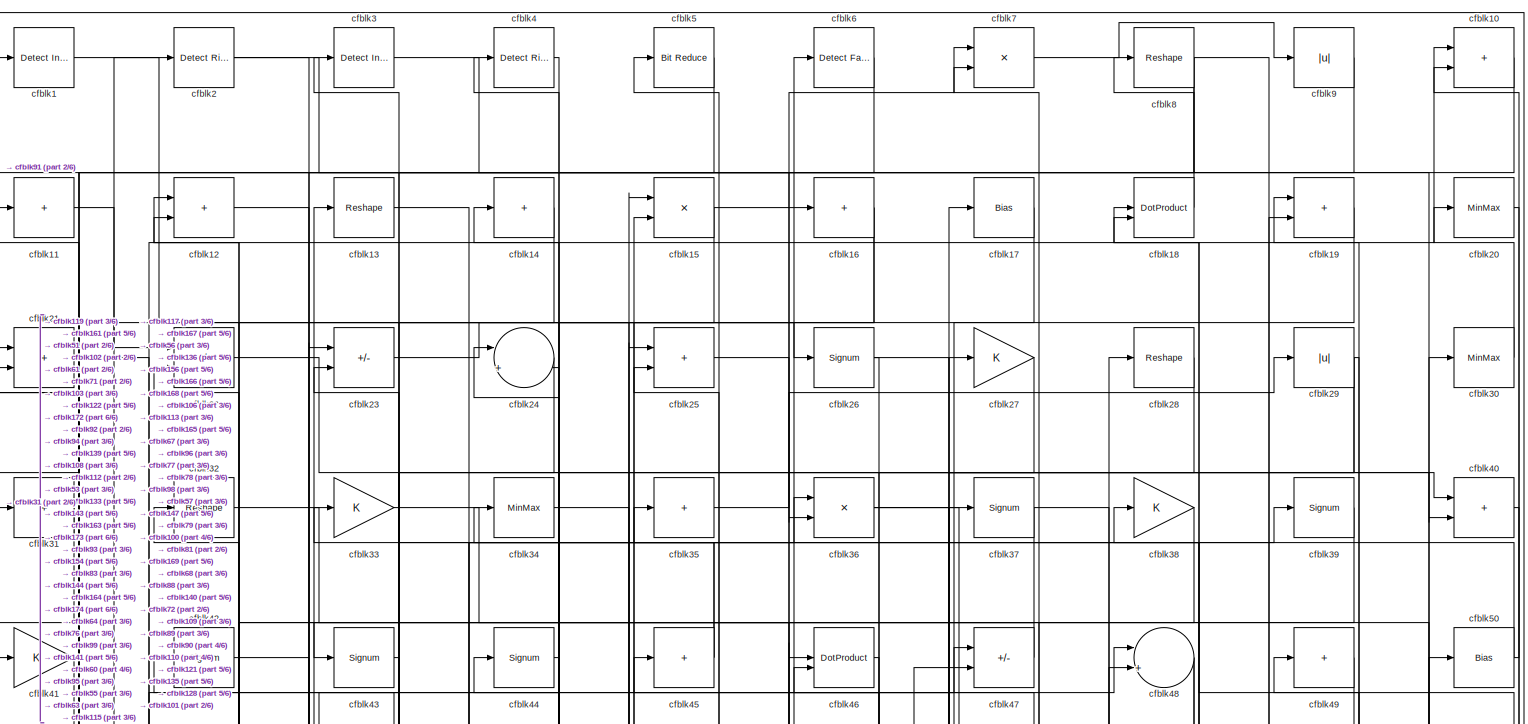
[diagram: root canvas - part 1/6, full width, top band]
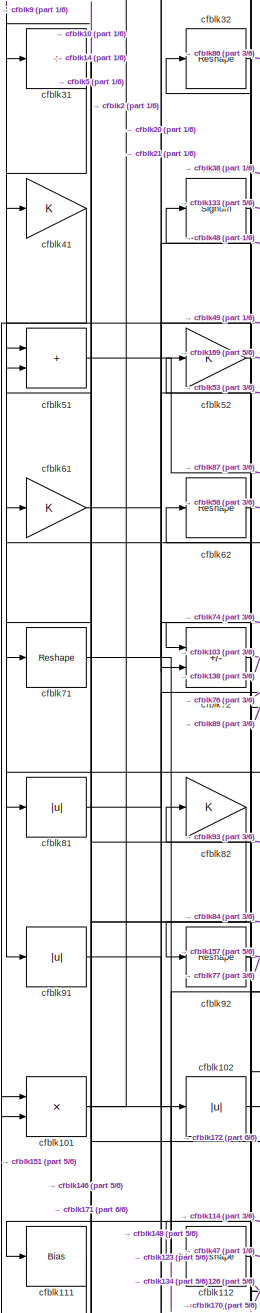
[diagram: root canvas - part 2/6, middle left region]
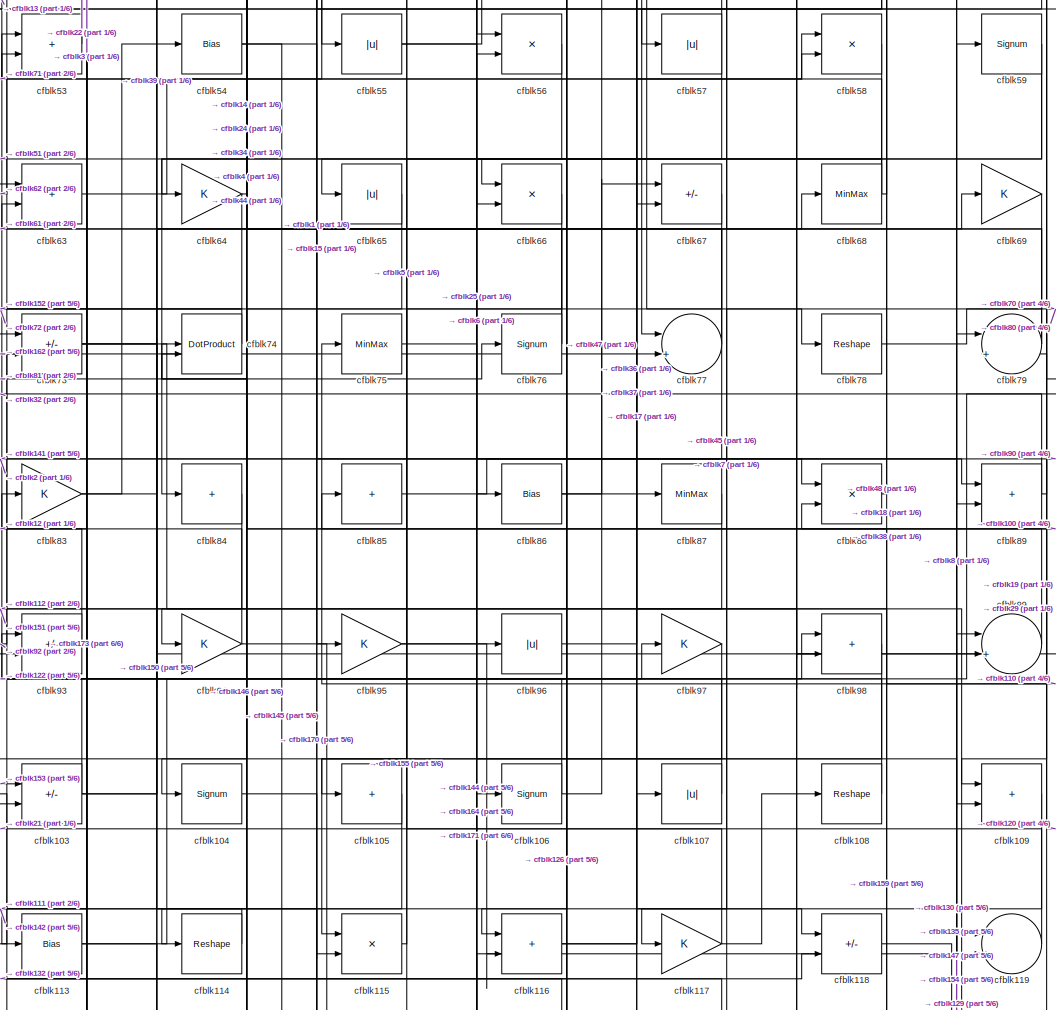
[diagram: root canvas - part 3/6, central region]
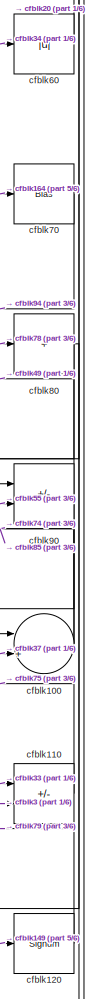
[diagram: root canvas - part 4/6, middle right region]
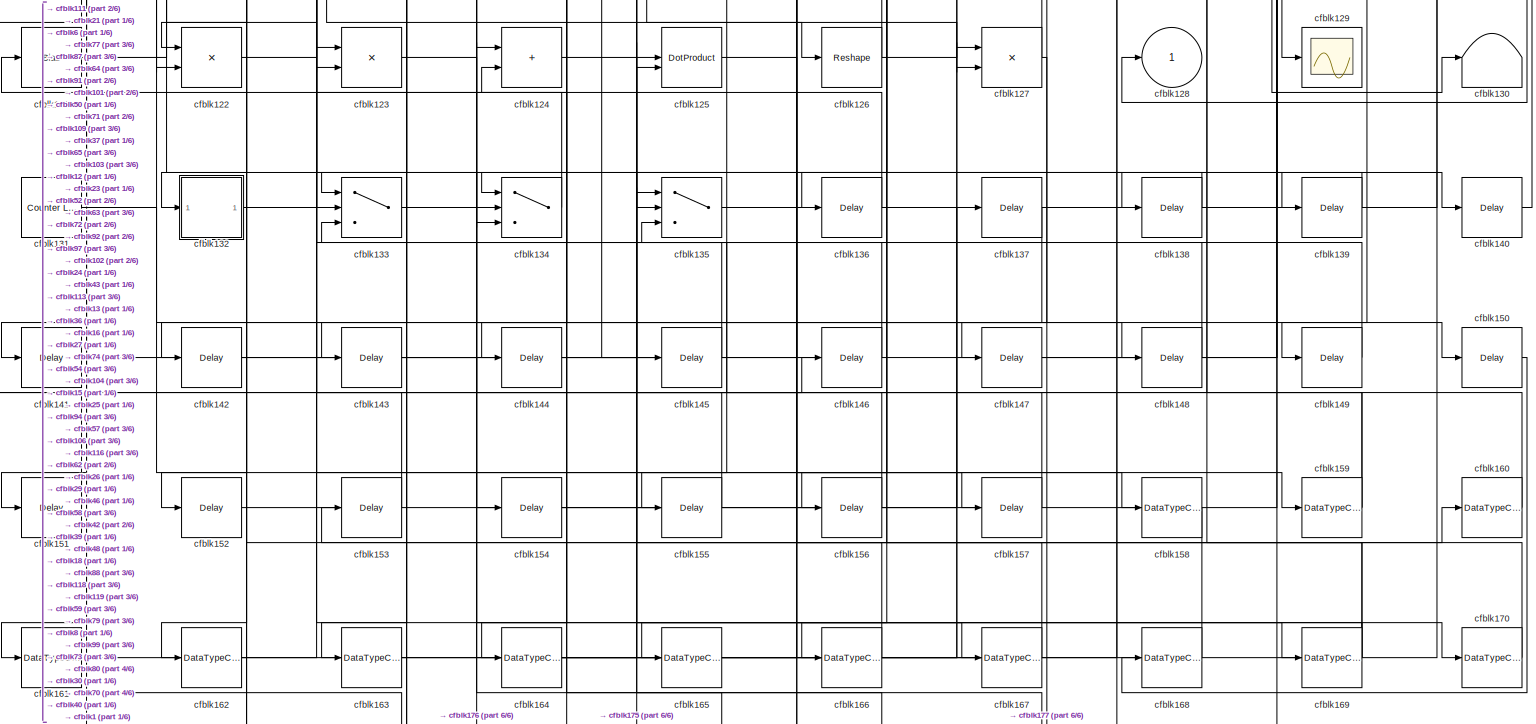
[diagram: root canvas - part 5/6, full width, bottom band]
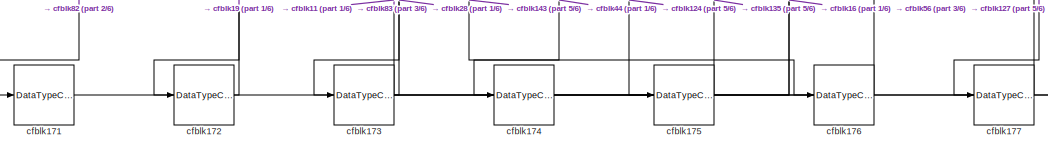
[diagram: root canvas - part 6/6, bottom center region]
MODEL slx_70a9b94ecc16
KIND model
CONFIG AbsTol = auto
CONFIG EnableMultiTasking = off
CONFIG FixedStep = auto
CONFIG MaxStep = auto
CONFIG MinStep = auto
CONFIG RelTol = 1e-3
CONFIG SampleTimeConstraint = Unconstrained
CONFIG SolverName = VariableStepAuto
CONFIG StartTime = 0.0
CONFIG StopTime = 10.0
BLOCK [Reference] cfblk1  REF=simulink/Logic and Bit
Operations/Detect
Increase
  LibrarySourceBlock = hdlsllib/Logic and Bit\nOperations/Detect\nIncrease
  SourceBlock = simulink/Logic and Bit\nOperations/Detect\nIncrease
  SourceType = Detect Increase
BLOCK [Sum] cfblk10
  IconShape = rectangular
BLOCK [Sum] cfblk100
  Inputs = |++
BLOCK [Product] cfblk101
  Inputs = */
  RndMeth = Zero
  SaturateOnIntegerOverflow = on
BLOCK [Abs] cfblk102
  SaturateOnIntegerOverflow = off
BLOCK [Sum] cfblk103
  IconShape = rectangular
  Inputs = +-
BLOCK [Signum] cfblk104
BLOCK [Sum] cfblk105
  IconShape = rectangular
  Inputs = +
BLOCK [Signum] cfblk106
BLOCK [Abs] cfblk107
  SaturateOnIntegerOverflow = off
BLOCK [Reshape] cfblk108
BLOCK [Sum] cfblk109
  IconShape = rectangular
BLOCK [Sum] cfblk11
  IconShape = rectangular
  Inputs = +
BLOCK [Sum] cfblk110
  IconShape = rectangular
  Inputs = +-
BLOCK [Bias] cfblk111
  Bias = 0.0
  SaturateOnIntegerOverflow = off
BLOCK [Reshape] cfblk112
BLOCK [Bias] cfblk113
  Bias = 0.0
  SaturateOnIntegerOverflow = off
BLOCK [Reshape] cfblk114
BLOCK [Product] cfblk115
  Inputs = */
  RndMeth = Zero
  SaturateOnIntegerOverflow = on
BLOCK [Sum] cfblk116
  IconShape = rectangular
BLOCK [Gain] cfblk117
BLOCK [Sum] cfblk118
  IconShape = rectangular
  Inputs = +-
BLOCK [Sum] cfblk119
  Inputs = |++
BLOCK [Sum] cfblk12
  IconShape = rectangular
BLOCK [Signum] cfblk120
BLOCK [Bias] cfblk121
  Bias = 0.0
  SaturateOnIntegerOverflow = off
BLOCK [Product] cfblk122
  Inputs = */
  RndMeth = Zero
  SaturateOnIntegerOverflow = on
BLOCK [Product] cfblk123
  Inputs = */
  RndMeth = Zero
  SaturateOnIntegerOverflow = on
BLOCK [Sum] cfblk124
  IconShape = rectangular
BLOCK [DotProduct] cfblk125
  OutDataTypeStr = Inherit: Inherit via internal rule
BLOCK [Reshape] cfblk126
BLOCK [Product] cfblk127
  Inputs = */
  RndMeth = Zero
  SaturateOnIntegerOverflow = on
BLOCK [Outport] cfblk128
  VectorParamsAs1DForOutWhenUnconnected = off
BLOCK [Scope] cfblk129
  Floating = off
  NumInputPorts = 1
  ScopeSpecificationString = Simulink.scopes.TimeScopeBlockCfg('CurrentConfiguration', extmgr.ConfigurationSet(extmgr.Configuration('Core','General UI',true),extmgr.Configuration('Core','Source UI',true),extmgr.Configuration('Sources','WiredSimulink',true,'DataLoggingVariableName','ScopeData2','DataLoggingSaveFormat','Array','DataLoggingLimitDataPoints',true,'DataLoggingDecimation','1'),extmgr.Configuration('Visuals','Time Do...<+868ch>
BLOCK [Reshape] cfblk13
BLOCK [Terminator] cfblk130
BLOCK [Reference] cfblk131  REF=hdlsllib/Sources/Counter
Limited
  SourceBlock = hdlsllib/Sources/Counter\nLimited
  SourceType = Counter Limited
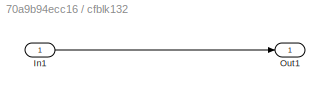
BLOCK [SubSystem] cfblk132
  LibrarySourceBlock = hdlsllib/Ports &\nSubsystems/Subsystem
BLOCK [Inport] cfblk132/In1
BLOCK [Outport] cfblk132/Out1
BLOCK [Switch] cfblk133
  InputSameDT = off
  SaturateOnIntegerOverflow = off
BLOCK [Switch] cfblk134
  InputSameDT = off
  SaturateOnIntegerOverflow = off
BLOCK [Switch] cfblk135
  InputSameDT = off
  SaturateOnIntegerOverflow = off
BLOCK [Delay] cfblk136
  InputPortMap = u0
  SampleTime = 1
BLOCK [Delay] cfblk137
  InputPortMap = u0
  SampleTime = 1
BLOCK [Delay] cfblk138
  InputPortMap = u0
  SampleTime = 1
BLOCK [Delay] cfblk139
  InputPortMap = u0
  SampleTime = 1
BLOCK [Sum] cfblk14
  IconShape = rectangular
  Inputs = +
BLOCK [Delay] cfblk140
  InputPortMap = u0
  SampleTime = 1
BLOCK [Delay] cfblk141
  InputPortMap = u0
  SampleTime = 1
BLOCK [Delay] cfblk142
  InputPortMap = u0
  SampleTime = 1
BLOCK [Delay] cfblk143
  InputPortMap = u0
  SampleTime = 1
BLOCK [Delay] cfblk144
  InputPortMap = u0
  SampleTime = 1
BLOCK [Delay] cfblk145
  InputPortMap = u0
  SampleTime = 1
BLOCK [Delay] cfblk146
  InputPortMap = u0
  SampleTime = 1
BLOCK [Delay] cfblk147
  InputPortMap = u0
  SampleTime = 1
BLOCK [Delay] cfblk148
  InputPortMap = u0
  SampleTime = 1
BLOCK [Delay] cfblk149
  InputPortMap = u0
  SampleTime = 1
BLOCK [Product] cfblk15
  Inputs = */
  RndMeth = Zero
  SaturateOnIntegerOverflow = on
BLOCK [Delay] cfblk150
  InputPortMap = u0
  SampleTime = 1
BLOCK [Delay] cfblk151
  InputPortMap = u0
  SampleTime = 1
BLOCK [Delay] cfblk152
  InputPortMap = u0
  SampleTime = 1
BLOCK [Delay] cfblk153
  InputPortMap = u0
  SampleTime = 1
BLOCK [Delay] cfblk154
  InputPortMap = u0
  SampleTime = 1
BLOCK [Delay] cfblk155
  InputPortMap = u0
  SampleTime = 1
BLOCK [Delay] cfblk156
  InputPortMap = u0
  SampleTime = 1
BLOCK [Delay] cfblk157
  InputPortMap = u0
  SampleTime = 1
BLOCK [DataTypeConversion] cfblk158
  OutDataTypeStr = uint8
  RndMeth = Floor
  SaturateOnIntegerOverflow = off
BLOCK [DataTypeConversion] cfblk159
  RndMeth = Floor
  SaturateOnIntegerOverflow = off
BLOCK [Sum] cfblk16
  IconShape = rectangular
  Inputs = +
BLOCK [DataTypeConversion] cfblk160
  OutDataTypeStr = uint8
  RndMeth = Floor
  SaturateOnIntegerOverflow = off
BLOCK [DataTypeConversion] cfblk161
  OutDataTypeStr = uint8
  RndMeth = Floor
  SaturateOnIntegerOverflow = off
BLOCK [DataTypeConversion] cfblk162
  OutDataTypeStr = uint8
  RndMeth = Floor
  SaturateOnIntegerOverflow = off
BLOCK [DataTypeConversion] cfblk163
  OutDataTypeStr = uint8
  RndMeth = Floor
  SaturateOnIntegerOverflow = off
BLOCK [DataTypeConversion] cfblk164
  RndMeth = Floor
  SaturateOnIntegerOverflow = off
BLOCK [DataTypeConversion] cfblk165
  OutDataTypeStr = uint8
  RndMeth = Floor
  SaturateOnIntegerOverflow = off
BLOCK [DataTypeConversion] cfblk166
  RndMeth = Floor
  SaturateOnIntegerOverflow = off
BLOCK [DataTypeConversion] cfblk167
  OutDataTypeStr = uint8
  RndMeth = Floor
  SaturateOnIntegerOverflow = off
BLOCK [DataTypeConversion] cfblk168
  OutDataTypeStr = uint8
  RndMeth = Floor
  SaturateOnIntegerOverflow = off
BLOCK [DataTypeConversion] cfblk169
  RndMeth = Floor
  SaturateOnIntegerOverflow = off
BLOCK [Bias] cfblk17
  Bias = 0.0
  SaturateOnIntegerOverflow = off
BLOCK [DataTypeConversion] cfblk170
  OutDataTypeStr = uint8
  RndMeth = Floor
  SaturateOnIntegerOverflow = off
BLOCK [DataTypeConversion] cfblk171
  OutDataTypeStr = uint8
  RndMeth = Floor
  SaturateOnIntegerOverflow = off
BLOCK [DataTypeConversion] cfblk172
  OutDataTypeStr = uint8
  RndMeth = Floor
  SaturateOnIntegerOverflow = off
BLOCK [DataTypeConversion] cfblk173
  RndMeth = Floor
  SaturateOnIntegerOverflow = off
BLOCK [DataTypeConversion] cfblk174
  OutDataTypeStr = uint8
  RndMeth = Floor
  SaturateOnIntegerOverflow = off
BLOCK [DataTypeConversion] cfblk175
  OutDataTypeStr = uint8
  RndMeth = Floor
  SaturateOnIntegerOverflow = off
BLOCK [DataTypeConversion] cfblk176
  OutDataTypeStr = uint8
  RndMeth = Floor
  SaturateOnIntegerOverflow = off
BLOCK [DataTypeConversion] cfblk177
  OutDataTypeStr = uint8
  RndMeth = Floor
  SaturateOnIntegerOverflow = off
BLOCK [DotProduct] cfblk18
  OutDataTypeStr = Inherit: Inherit via internal rule
BLOCK [Sum] cfblk19
  IconShape = rectangular
BLOCK [Reference] cfblk2  REF=hdlsllib/Logic and Bit
Operations/Detect Rise
Nonnegative
  SourceBlock = hdlsllib/Logic and Bit\nOperations/Detect Rise\nNonnegative
  SourceType = Detect Rise Nonnegative
BLOCK [MinMax] cfblk20
BLOCK [Sum] cfblk21
  IconShape = rectangular
BLOCK [Sum] cfblk22
  IconShape = rectangular
  Inputs = +-
BLOCK [Sum] cfblk23
  IconShape = rectangular
  Inputs = +-
BLOCK [Sum] cfblk24
  Inputs = |++
BLOCK [Sum] cfblk25
  IconShape = rectangular
BLOCK [Signum] cfblk26
BLOCK [Gain] cfblk27
BLOCK [Reshape] cfblk28
BLOCK [Abs] cfblk29
  SaturateOnIntegerOverflow = off
BLOCK [Reference] cfblk3  REF=simulink/Logic and Bit
Operations/Detect
Increase
  LibrarySourceBlock = hdlsllib/Logic and Bit\nOperations/Detect\nIncrease
  SourceBlock = simulink/Logic and Bit\nOperations/Detect\nIncrease
  SourceType = Detect Increase
BLOCK [MinMax] cfblk30
BLOCK [Sum] cfblk31
  IconShape = rectangular
  Inputs = +
BLOCK [Reshape] cfblk32
BLOCK [Gain] cfblk33
BLOCK [MinMax] cfblk34
BLOCK [Sum] cfblk35
  IconShape = rectangular
  Inputs = +
BLOCK [Product] cfblk36
  Inputs = */
  RndMeth = Zero
  SaturateOnIntegerOverflow = on
BLOCK [Signum] cfblk37
BLOCK [Gain] cfblk38
BLOCK [Signum] cfblk39
BLOCK [Reference] cfblk4  REF=hdlsllib/Logic and Bit
Operations/Detect Rise
Positive
  SourceBlock = hdlsllib/Logic and Bit\nOperations/Detect Rise\nPositive
  SourceType = Detect Rise Positive
BLOCK [Sum] cfblk40
  IconShape = rectangular
BLOCK [Gain] cfblk41
BLOCK [Signum] cfblk42
BLOCK [Signum] cfblk43
BLOCK [Signum] cfblk44
BLOCK [Sum] cfblk45
  IconShape = rectangular
  Inputs = +
BLOCK [DotProduct] cfblk46
  OutDataTypeStr = Inherit: Inherit via internal rule
BLOCK [Sum] cfblk47
  IconShape = rectangular
  Inputs = +-
BLOCK [Sum] cfblk48
  Inputs = |++
BLOCK [Sum] cfblk49
  IconShape = rectangular
  Inputs = +
BLOCK [Reference] cfblk5  REF=hdlsllib/Logic and Bit
Operations/Bit Reduce
  SourceBlock = hdlsllib/Logic and Bit\nOperations/Bit Reduce
  SourceType = Bit Reduce
BLOCK [Bias] cfblk50
  Bias = 0.0
  SaturateOnIntegerOverflow = off
BLOCK [Sum] cfblk51
  IconShape = rectangular
BLOCK [Gain] cfblk52
BLOCK [Sum] cfblk53
  IconShape = rectangular
BLOCK [Bias] cfblk54
  Bias = 0.0
  SaturateOnIntegerOverflow = off
BLOCK [Abs] cfblk55
  SaturateOnIntegerOverflow = off
BLOCK [Product] cfblk56
  Inputs = */
  RndMeth = Zero
  SaturateOnIntegerOverflow = on
BLOCK [Abs] cfblk57
  SaturateOnIntegerOverflow = off
BLOCK [Product] cfblk58
  Inputs = */
  RndMeth = Zero
  SaturateOnIntegerOverflow = on
BLOCK [Signum] cfblk59
BLOCK [Reference] cfblk6  REF=hdlsllib/Logic and Bit
Operations/Detect Fall
Negative
  SourceBlock = hdlsllib/Logic and Bit\nOperations/Detect Fall\nNegative
  SourceType = Detect Fall Negative
BLOCK [Abs] cfblk60
  SaturateOnIntegerOverflow = off
BLOCK [Gain] cfblk61
BLOCK [Reshape] cfblk62
BLOCK [Sum] cfblk63
  IconShape = rectangular
BLOCK [Gain] cfblk64
BLOCK [Abs] cfblk65
  SaturateOnIntegerOverflow = off
BLOCK [Product] cfblk66
  Inputs = */
  RndMeth = Zero
  SaturateOnIntegerOverflow = on
BLOCK [Sum] cfblk67
  IconShape = rectangular
  Inputs = +-
BLOCK [MinMax] cfblk68
BLOCK [Gain] cfblk69
BLOCK [Product] cfblk7
  Inputs = */
  RndMeth = Zero
  SaturateOnIntegerOverflow = on
BLOCK [Bias] cfblk70
  Bias = 0.0
  SaturateOnIntegerOverflow = off
BLOCK [Reshape] cfblk71
BLOCK [Sum] cfblk72
  IconShape = rectangular
  Inputs = +-
BLOCK [Sum] cfblk73
  IconShape = rectangular
  Inputs = +-
BLOCK [DotProduct] cfblk74
  OutDataTypeStr = Inherit: Inherit via internal rule
BLOCK [MinMax] cfblk75
BLOCK [Signum] cfblk76
BLOCK [Sum] cfblk77
  Inputs = |++
BLOCK [Reshape] cfblk78
BLOCK [Sum] cfblk79
  Inputs = |++
BLOCK [Reshape] cfblk8
BLOCK [Sum] cfblk80
  IconShape = rectangular
  Inputs = +
BLOCK [Abs] cfblk81
  SaturateOnIntegerOverflow = off
BLOCK [Gain] cfblk82
BLOCK [Gain] cfblk83
BLOCK [Sum] cfblk84
  IconShape = rectangular
  Inputs = +
BLOCK [Sum] cfblk85
  IconShape = rectangular
  Inputs = +
BLOCK [Bias] cfblk86
  Bias = 0.0
  SaturateOnIntegerOverflow = off
BLOCK [MinMax] cfblk87
BLOCK [Product] cfblk88
  Inputs = */
  RndMeth = Zero
  SaturateOnIntegerOverflow = on
BLOCK [Sum] cfblk89
  IconShape = rectangular
BLOCK [Abs] cfblk9
  SaturateOnIntegerOverflow = off
BLOCK [Sum] cfblk90
  IconShape = rectangular
  Inputs = +-
BLOCK [Abs] cfblk91
  SaturateOnIntegerOverflow = off
BLOCK [Reshape] cfblk92
BLOCK [Sum] cfblk93
  IconShape = rectangular
  Inputs = +-
BLOCK [Gain] cfblk94
BLOCK [Gain] cfblk95
BLOCK [Abs] cfblk96
  SaturateOnIntegerOverflow = off
BLOCK [Gain] cfblk97
BLOCK [Sum] cfblk98
  IconShape = rectangular
BLOCK [Sum] cfblk99
  Inputs = |++
NET cfblk100:1 -> cfblk74:1, cfblk85:1
NET cfblk101:1 -> cfblk134:3, cfblk2:1
LINE cfblk102:1 -> cfblk127:2
NET cfblk103:1 -> cfblk12:1, cfblk68:1, cfblk69:1
LINE cfblk104:1 -> cfblk170:1
LINE cfblk105:1 -> cfblk114:1
NET cfblk106:1 -> cfblk47:2, cfblk93:1
LINE cfblk107:1 -> cfblk63:2
LINE cfblk108:1 -> cfblk13:1
LINE cfblk109:1 -> cfblk142:1
LINE cfblk10:1 -> cfblk71:1
LINE cfblk110:1 -> cfblk75:1
LINE cfblk111:1 -> cfblk146:1
LINE cfblk112:1 -> cfblk47:1
NET cfblk113:1 -> cfblk150:1, cfblk17:1
LINE cfblk114:1 -> cfblk111:1
LINE cfblk115:1 -> cfblk25:2
NET cfblk116:1 -> cfblk107:1, cfblk98:1
NET cfblk117:1 -> cfblk108:1, cfblk5:1
LINE cfblk118:1 -> cfblk130:1
LINE cfblk119:1 -> cfblk21:1
LINE cfblk11:1 -> cfblk22:1
LINE cfblk120:1 -> cfblk79:2
LINE cfblk121:1 -> cfblk50:1
LINE cfblk122:1 -> cfblk97:1
LINE cfblk123:1 -> cfblk167:1
LINE cfblk124:1 -> cfblk175:1
LINE cfblk125:1 -> cfblk159:1
NET cfblk126:1 -> cfblk58:2, cfblk62:1
NET cfblk127:1 -> cfblk177:1, cfblk42:1
LINE cfblk12:1 -> cfblk139:1
LINE cfblk131:1 -> cfblk158:1
LINE cfblk132/In1:1 -> cfblk132/Out1:1
LINE cfblk132:1 -> cfblk118:2
LINE cfblk133:1 -> cfblk36:1
LINE cfblk134:1 -> cfblk121:1
NET cfblk135:1 -> cfblk30:1, cfblk59:1
LINE cfblk136:1 -> cfblk23:1
LINE cfblk137:1 -> cfblk162:1
LINE cfblk138:1 -> cfblk134:1
LINE cfblk139:1 -> cfblk135:2
LINE cfblk13:1 -> cfblk154:1
LINE cfblk140:1 -> cfblk1:1
LINE cfblk141:1 -> cfblk15:1
LINE cfblk142:1 -> cfblk99:1
LINE cfblk143:1 -> cfblk176:1
LINE cfblk144:1 -> cfblk116:2
LINE cfblk145:1 -> cfblk63:1
LINE cfblk146:1 -> cfblk74:2
LINE cfblk147:1 -> cfblk79:1
LINE cfblk148:1 -> cfblk123:1
LINE cfblk149:1 -> cfblk133:3
LINE cfblk14:1 -> cfblk31:1
LINE cfblk150:1 -> cfblk168:1
LINE cfblk151:1 -> cfblk101:1
LINE cfblk152:1 -> cfblk127:1
LINE cfblk153:1 -> cfblk103:1
LINE cfblk154:1 -> cfblk119:1
LINE cfblk155:1 -> cfblk134:2
LINE cfblk156:1 -> cfblk21:2
LINE cfblk157:1 -> cfblk135:3
LINE cfblk158:1 -> cfblk160:1
NET cfblk159:1 -> cfblk73:1, cfblk88:2
NET cfblk15:1 -> cfblk55:1, cfblk7:1
LINE cfblk160:1 -> cfblk125:1
LINE cfblk161:1 -> cfblk125:2
LINE cfblk162:1 -> cfblk73:2
LINE cfblk163:1 -> cfblk137:1
NET cfblk164:1 -> cfblk106:1, cfblk70:1
LINE cfblk165:1 -> cfblk27:1
NET cfblk166:1 -> cfblk25:1, cfblk48:2
LINE cfblk167:1 -> cfblk46:1
LINE cfblk168:1 -> cfblk46:2
NET cfblk169:1 -> cfblk153:1, cfblk165:1, cfblk18:2
NET cfblk16:1 -> cfblk143:1, cfblk144:1
LINE cfblk170:1 -> cfblk52:1
LINE cfblk171:1 -> cfblk56:2
LINE cfblk172:1 -> cfblk82:1
NET cfblk173:1 -> cfblk11:1, cfblk16:1, cfblk19:2, cfblk83:1
LINE cfblk174:1 -> cfblk28:1
LINE cfblk175:1 -> cfblk135:1
LINE cfblk176:1 -> cfblk124:1
LINE cfblk177:1 -> cfblk124:2
LINE cfblk17:1 -> cfblk77:1
LINE cfblk18:1 -> cfblk8:1
LINE cfblk19:1 -> cfblk172:1
LINE cfblk1:1 -> cfblk95:1
LINE cfblk20:1 -> cfblk90:1
LINE cfblk21:1 -> cfblk102:1
LINE cfblk22:1 -> cfblk40:1
LINE cfblk23:1 -> cfblk26:1
LINE cfblk24:1 -> cfblk133:1
LINE cfblk25:1 -> cfblk56:1
NET cfblk26:1 -> cfblk136:1, cfblk40:2
LINE cfblk27:1 -> cfblk164:1
LINE cfblk28:1 -> cfblk173:1
NET cfblk29:1 -> cfblk109:1, cfblk156:1, cfblk67:2
NET cfblk2:1 -> cfblk36:2, cfblk88:1
LINE cfblk30:1 -> cfblk10:1
LINE cfblk31:1 -> cfblk41:1
LINE cfblk32:1 -> cfblk86:1
LINE cfblk33:1 -> cfblk110:1
LINE cfblk34:1 -> cfblk60:1
LINE cfblk35:1 -> cfblk29:1
NET cfblk36:1 -> cfblk78:1, cfblk98:2
NET cfblk37:1 -> cfblk100:2, cfblk122:1
LINE cfblk38:1 -> cfblk92:1
LINE cfblk39:1 -> cfblk147:1
LINE cfblk3:1 -> cfblk110:2
LINE cfblk40:1 -> cfblk128:1
LINE cfblk41:1 -> cfblk101:2
LINE cfblk42:1 -> cfblk133:2
LINE cfblk43:1 -> cfblk163:1
LINE cfblk44:1 -> cfblk174:1
NET cfblk45:1 -> cfblk24:2, cfblk35:1
LINE cfblk46:1 -> cfblk166:1
LINE cfblk47:1 -> cfblk43:1
NET cfblk48:1 -> cfblk57:1, cfblk81:1
LINE cfblk49:1 -> cfblk72:2
LINE cfblk4:1 -> cfblk64:1
NET cfblk50:1 -> cfblk10:2, cfblk23:2
LINE cfblk51:1 -> cfblk87:1
LINE cfblk52:1 -> cfblk169:1
LINE cfblk53:1 -> cfblk22:2
NET cfblk54:1 -> cfblk145:1, cfblk89:2
NET cfblk55:1 -> cfblk6:1, cfblk90:2
LINE cfblk56:1 -> cfblk84:1
NET cfblk57:1 -> cfblk155:1, cfblk45:1
LINE cfblk58:1 -> cfblk65:1
NET cfblk59:1 -> cfblk116:1, cfblk66:2
LINE cfblk5:1 -> cfblk51:1
LINE cfblk60:1 -> cfblk33:1
LINE cfblk61:1 -> cfblk20:1
LINE cfblk62:1 -> cfblk58:1
LINE cfblk63:1 -> cfblk15:2
NET cfblk64:1 -> cfblk122:2, cfblk34:1
LINE cfblk65:1 -> cfblk152:1
LINE cfblk66:1 -> cfblk104:1
LINE cfblk67:1 -> cfblk105:1
NET cfblk68:1 -> cfblk18:1, cfblk53:1, cfblk66:1
LINE cfblk69:1 -> cfblk117:1
LINE cfblk6:1 -> cfblk161:1
LINE cfblk70:1 -> cfblk94:1
NET cfblk71:1 -> cfblk123:2, cfblk48:1, cfblk53:2
NET cfblk72:1 -> cfblk103:2, cfblk138:1
NET cfblk73:1 -> cfblk115:2, cfblk129:1, cfblk99:2
LINE cfblk74:1 -> cfblk72:1
LINE cfblk75:1 -> cfblk109:2
NET cfblk76:1 -> cfblk4:1, cfblk61:1
NET cfblk77:1 -> cfblk141:1, cfblk24:1, cfblk3:1
LINE cfblk78:1 -> cfblk80:1
NET cfblk79:1 -> cfblk44:1, cfblk7:2
LINE cfblk7:1 -> cfblk9:1
NET cfblk80:1 -> cfblk120:1, cfblk149:1
LINE cfblk81:1 -> cfblk76:1
LINE cfblk82:1 -> cfblk171:1
NET cfblk83:1 -> cfblk39:1, cfblk54:1
LINE cfblk84:1 -> cfblk112:1
LINE cfblk85:1 -> cfblk89:1
NET cfblk86:1 -> cfblk118:1, cfblk67:1
LINE cfblk87:1 -> cfblk151:1
LINE cfblk88:1 -> cfblk38:1
NET cfblk89:1 -> cfblk19:1, cfblk32:1
NET cfblk8:1 -> cfblk113:1, cfblk140:1, cfblk93:2
NET cfblk90:1 -> cfblk100:1, cfblk49:1
LINE cfblk91:1 -> cfblk148:1
NET cfblk92:1 -> cfblk157:1, cfblk77:2
LINE cfblk93:1 -> cfblk51:2
NET cfblk94:1 -> cfblk126:1, cfblk12:2
NET cfblk95:1 -> cfblk119:2, cfblk96:1
LINE cfblk96:1 -> cfblk37:1
LINE cfblk97:1 -> cfblk132:1
LINE cfblk98:1 -> cfblk115:1
LINE cfblk99:1 -> cfblk14:1
LINE cfblk9:1 -> cfblk91:1
note: NET lines group one-source signal fan-out (src -> all destinations, sorted); 1:1 wires keep LINE
